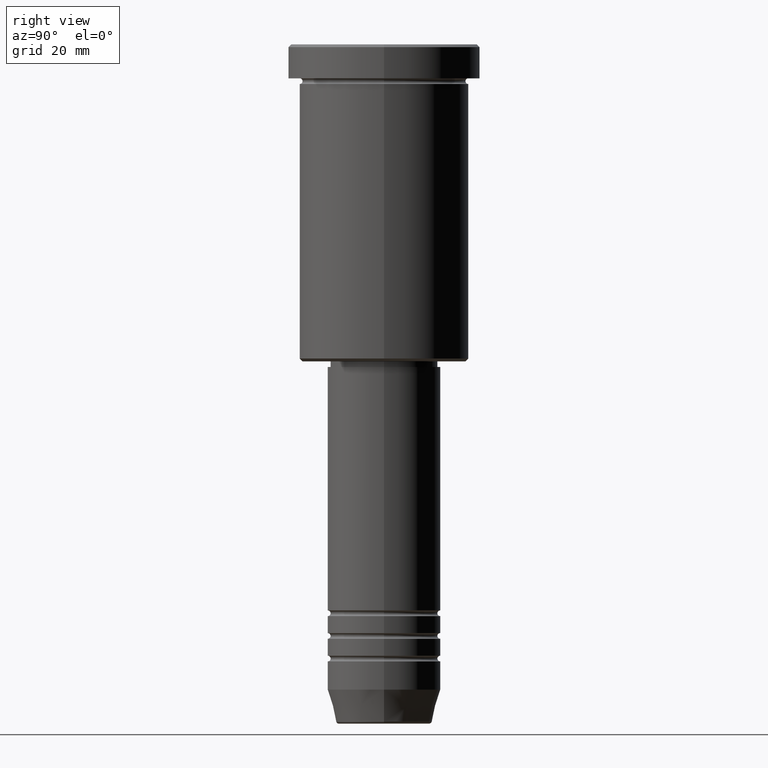
[diagram: clean part render]
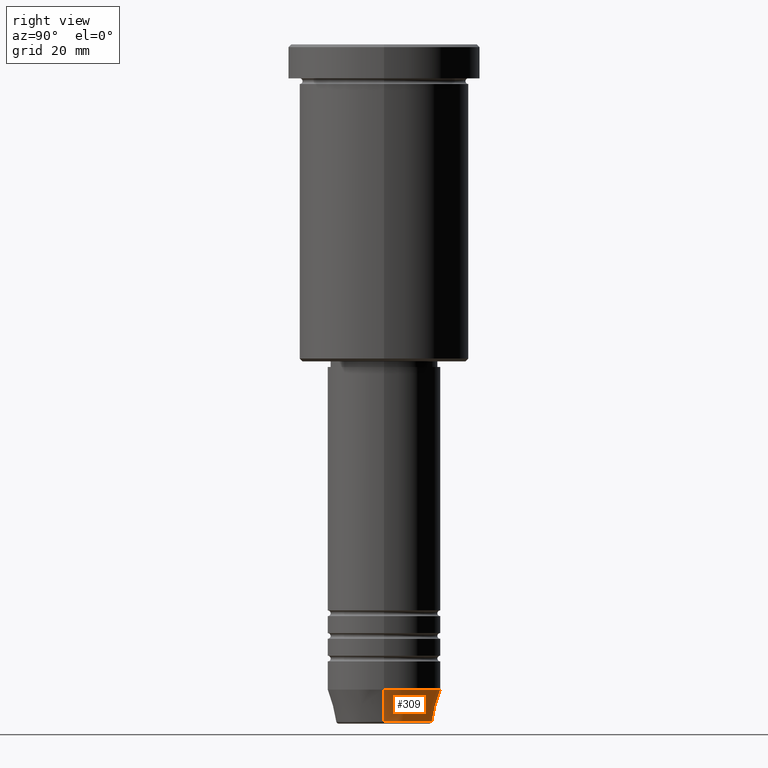
[diagram: same view with one face highlighted and labeled with its STEP entity id]
A machine part, right view. The second image highlights one B-rep face of the part: STEP entity #309.
In plain terms, the highlighted conical surface has half-angle 15 deg.
Its self-contained STEP definition (entity closure, byte-faithful):
#52 = DIRECTION ( 'NONE',  ( 1.000000000000000000, 0.000000000000000000, 0.000000000000000000 ) ) ;
#116 = CARTESIAN_POINT ( 'NONE',  ( 0.000000000000000000, 0.000000000000000000, -119.6294095225512564 ) ) ;
#147 = ORIENTED_EDGE ( 'NONE', *, *, #257, .F. ) ;
#150 = CARTESIAN_POINT ( 'NONE',  ( -10.00000000000000178, 1.224646799147353454E-15, -113.9999999999999858 ) ) ;
#167 = DIRECTION ( 'NONE',  ( -0.2588190451025214056, 3.169619151431772953E-17, 0.9659258262890680902 ) ) ;
#224 = DIRECTION ( 'NONE',  ( -0.000000000000000000, -0.000000000000000000, 1.000000000000000000 ) ) ;
#237 = CARTESIAN_POINT ( 'NONE',  ( 0.000000000000000000, 0.000000000000000000, -113.9999999999999858 ) ) ;
#257 = EDGE_CURVE ( 'NONE', #360, #1060, #920, .T. ) ;
#309 = ADVANCED_FACE ( 'NONE', ( #1051 ), #1020, .T. ) ;
#325 = VECTOR ( 'NONE', #479, 1000.000000000000000 ) ;
#335 = LINE ( 'NONE', #150, #1003 ) ;
#359 = ORIENTED_EDGE ( 'NONE', *, *, #1046, .F. ) ;
#360 = VERTEX_POINT ( 'NONE', #997 ) ;
#378 = CARTESIAN_POINT ( 'NONE',  ( 10.00000000000000178, 0.000000000000000000, -113.9999999999999858 ) ) ;
#465 = LINE ( 'NONE', #378, #325 ) ;
#479 = DIRECTION ( 'NONE',  ( 0.2588190451025214056, 0.000000000000000000, 0.9659258262890680902 ) ) ;
#509 = DIRECTION ( 'NONE',  ( 1.000000000000000000, 0.000000000000000000, 0.000000000000000000 ) ) ;
#572 = AXIS2_PLACEMENT_3D ( 'NONE', #116, #224, #935 ) ;
#594 = AXIS2_PLACEMENT_3D ( 'NONE', #237, #1063, #509 ) ;
#766 = ORIENTED_EDGE ( 'NONE', *, *, #1121, .T. ) ;
#813 = ORIENTED_EDGE ( 'NONE', *, *, #840, .T. ) ;
#822 = VERTEX_POINT ( 'NONE', #1165 ) ;
#840 = EDGE_CURVE ( 'NONE', #822, #1060, #335, .T. ) ;
#920 = CIRCLE ( 'NONE', #938, 10.00000000000000178 ) ;
#935 = DIRECTION ( 'NONE',  ( 1.000000000000000000, 0.000000000000000000, 0.000000000000000000 ) ) ;
#938 = AXIS2_PLACEMENT_3D ( 'NONE', #1043, #1135, #52 ) ;
#962 = CARTESIAN_POINT ( 'NONE',  ( 8.491604264568312743, 0.000000000000000000, -119.6294095225512564 ) ) ;
#997 = CARTESIAN_POINT ( 'NONE',  ( 10.00000000000000178, 0.000000000000000000, -113.9999999999999858 ) ) ;
#1003 = VECTOR ( 'NONE', #167, 1000.000000000000000 ) ;
#1020 = CONICAL_SURFACE ( 'NONE', #594, 10.00000000000000178, 0.2617993877991501295 ) ;
#1043 = CARTESIAN_POINT ( 'NONE',  ( 0.000000000000000000, 0.000000000000000000, -113.9999999999999858 ) ) ;
#1046 = EDGE_CURVE ( 'NONE', #1163, #360, #465, .T. ) ;
#1051 = FACE_OUTER_BOUND ( 'NONE', #1161, .T. ) ;
#1060 = VERTEX_POINT ( 'NONE', #1109 ) ;
#1063 = DIRECTION ( 'NONE',  ( -0.000000000000000000, -0.000000000000000000, 1.000000000000000000 ) ) ;
#1089 = CIRCLE ( 'NONE', #572, 8.491604264568312743 ) ;
#1109 = CARTESIAN_POINT ( 'NONE',  ( -10.00000000000000178, 1.224646799147353454E-15, -113.9999999999999858 ) ) ;
#1121 = EDGE_CURVE ( 'NONE', #1163, #822, #1089, .T. ) ;
#1135 = DIRECTION ( 'NONE',  ( -0.000000000000000000, -0.000000000000000000, 1.000000000000000000 ) ) ;
#1161 = EDGE_LOOP ( 'NONE', ( #766, #813, #147, #359 ) ) ;
#1163 = VERTEX_POINT ( 'NONE', #962 ) ;
#1165 = CARTESIAN_POINT ( 'NONE',  ( -8.491604264568312743, 1.132284198685156781E-15, -119.6294095225512564 ) ) ;